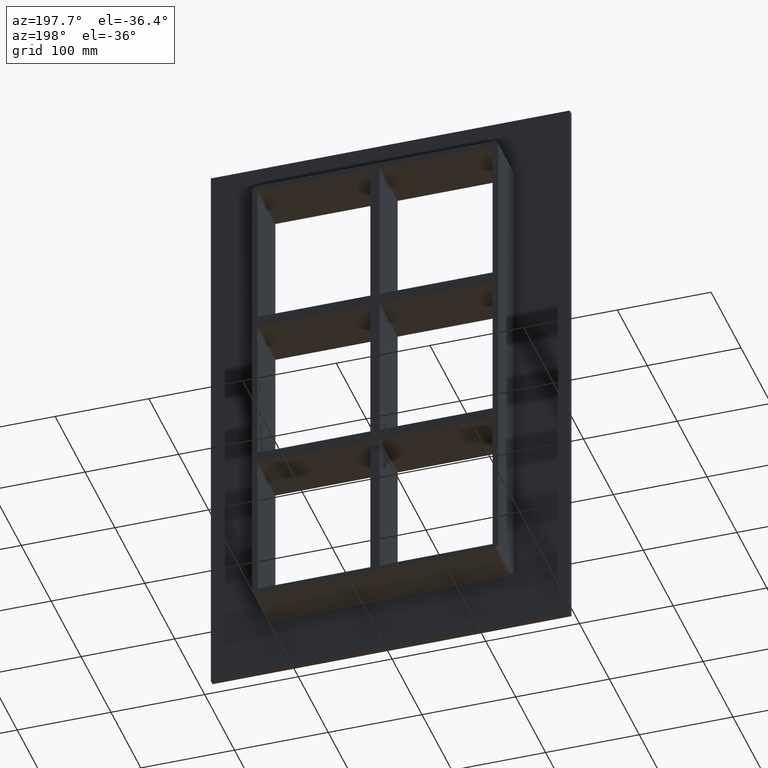
[diagram: clean part render]
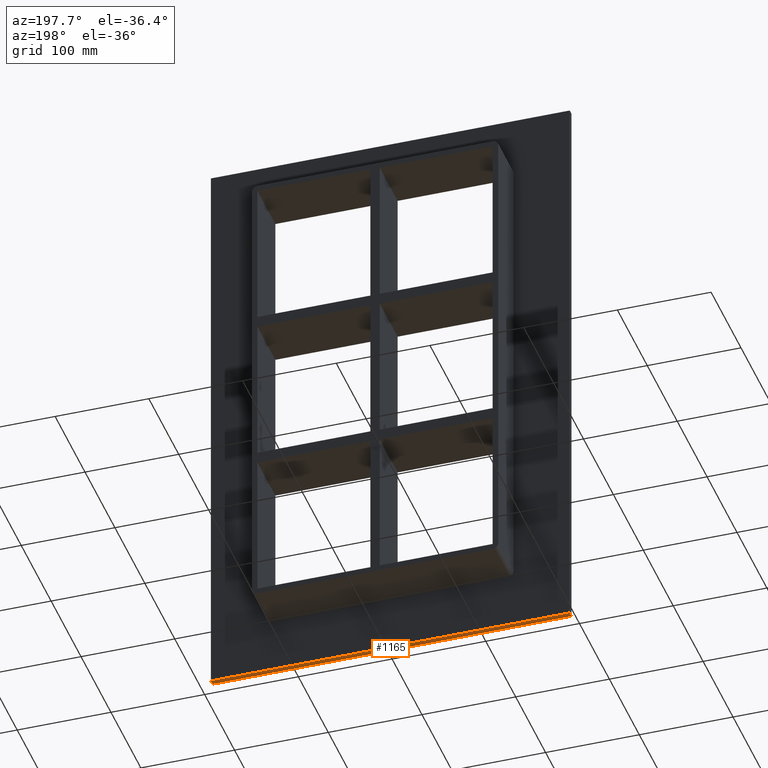
[diagram: same view with one face highlighted and labeled with its STEP entity id]
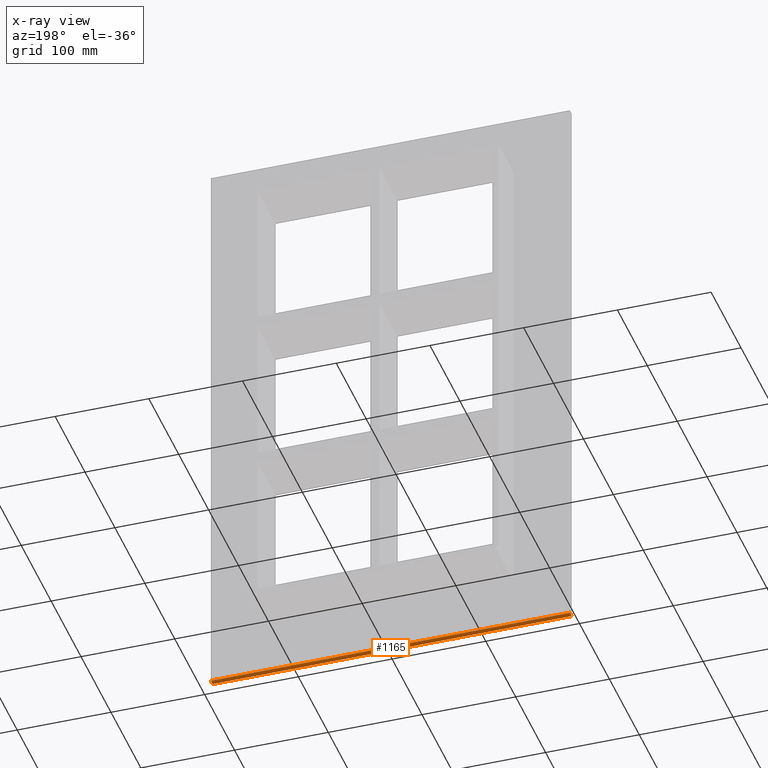
[diagram: x-ray of the same camera — body ghosted, the highlighted face saturated]
A machine part, auxiliary view. The second image highlights one B-rep face of the part: STEP entity #1165.
The next image is the same camera in x-ray: the body ghosted, the highlighted face saturated — about 0% of this face is hidden behind the body in this view.
In plain terms, the highlighted planar face has unit normal (0, 0, -1).
Its self-contained STEP definition (entity closure, byte-faithful):
#922=CARTESIAN_POINT('',(191.49999999999994,6.000000000000001,-317.24999999999994));
#923=VERTEX_POINT('',#922);
#930=CARTESIAN_POINT('',(-191.50000000000003,6.000000000000001,-317.24999999999994));
#931=VERTEX_POINT('',#930);
#932=CARTESIAN_POINT('',(191.5,6.000000000000001,-317.24999999999994));
#933=DIRECTION('',(-1.0,0.0,0.0));
#934=VECTOR('',#933,383.0);
#935=LINE('',#932,#934);
#936=EDGE_CURVE('',#923,#931,#935,.T.);
#1032=CARTESIAN_POINT('',(-191.50000000000003,0.0,-317.24999999999994));
#1033=VERTEX_POINT('',#1032);
#1040=CARTESIAN_POINT('',(191.5,0.0,-317.24999999999994));
#1041=VERTEX_POINT('',#1040);
#1042=CARTESIAN_POINT('',(191.5,0.0,-317.24999999999994));
#1043=DIRECTION('',(-1.0,0.0,0.0));
#1044=VECTOR('',#1043,383.0);
#1045=LINE('',#1042,#1044);
#1046=EDGE_CURVE('',#1041,#1033,#1045,.T.);
#1140=CARTESIAN_POINT('',(-191.50000000000003,0.0,-317.24999999999994));
#1141=DIRECTION('',(0.0,1.0,0.0));
#1142=VECTOR('',#1141,6.000000000000001);
#1143=LINE('',#1140,#1142);
#1144=EDGE_CURVE('',#1033,#931,#1143,.T.);
#1149=CARTESIAN_POINT('',(191.5,0.0,-317.24999999999994));
#1150=DIRECTION('',(0.0,0.0,-1.0));
#1151=DIRECTION('',(-1.0,0.0,0.0));
#1152=AXIS2_PLACEMENT_3D('',#1149,#1150,#1151);
#1153=PLANE('',#1152);
#1154=ORIENTED_EDGE('',*,*,#1046,.T.);
#1155=ORIENTED_EDGE('',*,*,#1144,.T.);
#1156=ORIENTED_EDGE('',*,*,#936,.F.);
#1157=CARTESIAN_POINT('',(191.5,0.0,-317.24999999999994));
#1158=DIRECTION('',(0.0,1.0,0.0));
#1159=VECTOR('',#1158,6.000000000000001);
#1160=LINE('',#1157,#1159);
#1161=EDGE_CURVE('',#1041,#923,#1160,.T.);
#1162=ORIENTED_EDGE('',*,*,#1161,.F.);
#1163=EDGE_LOOP('',(#1154,#1155,#1156,#1162));
#1164=FACE_OUTER_BOUND('',#1163,.T.);
#1165=ADVANCED_FACE('',(#1164),#1153,.T.);